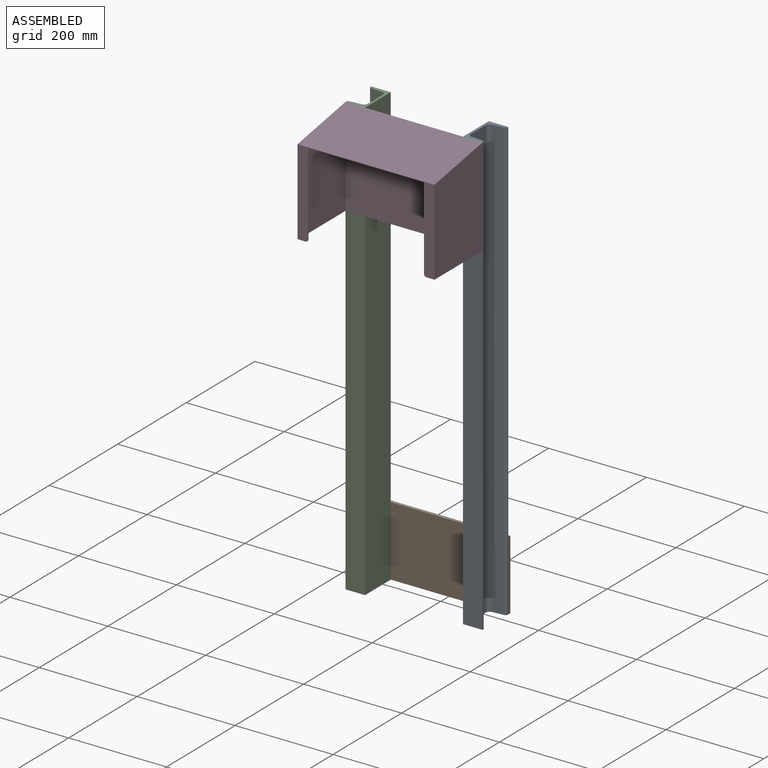
[diagram: assembled view]
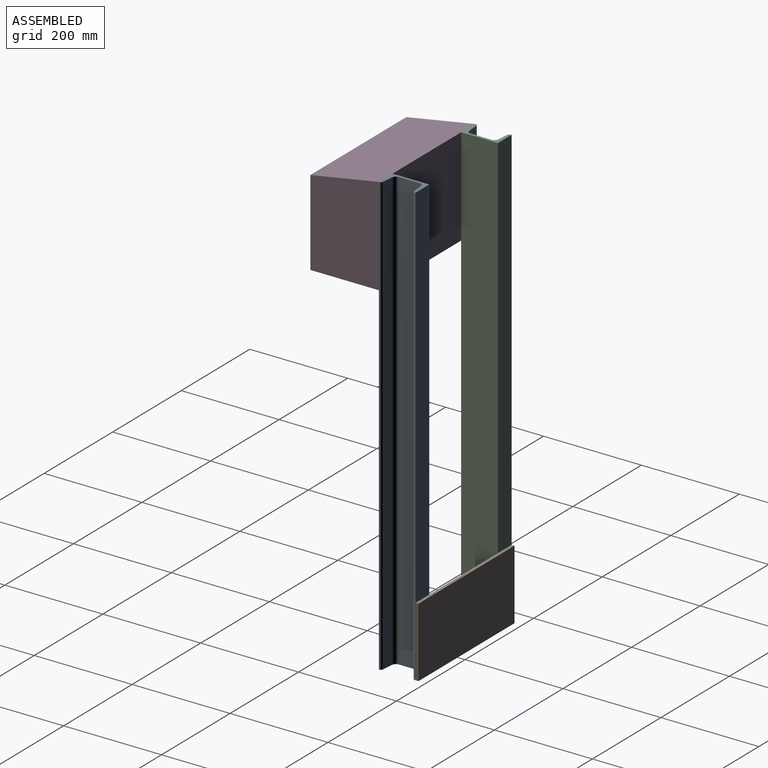
[diagram: assembled view, second angle]
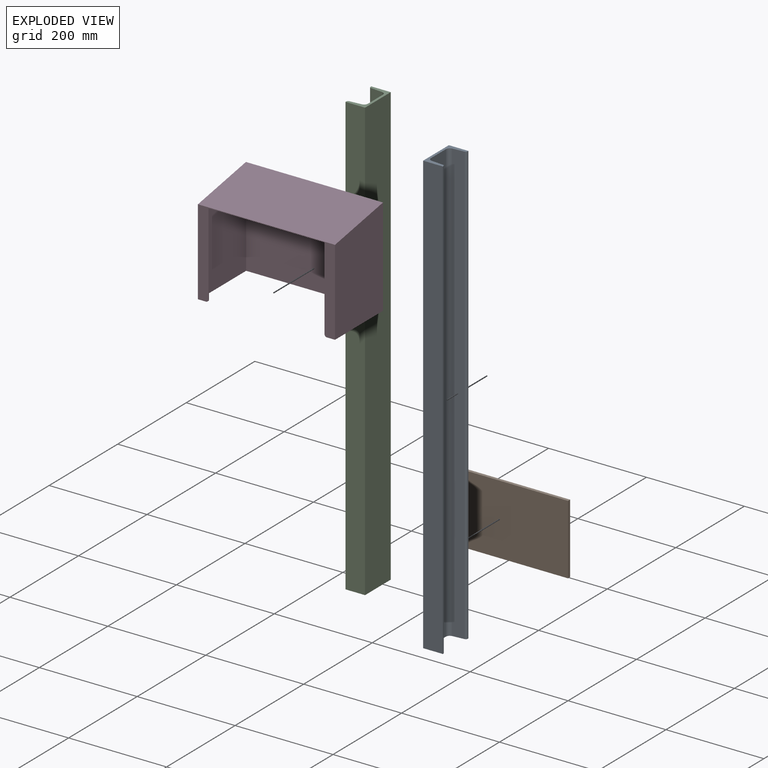
[diagram: exploded view]
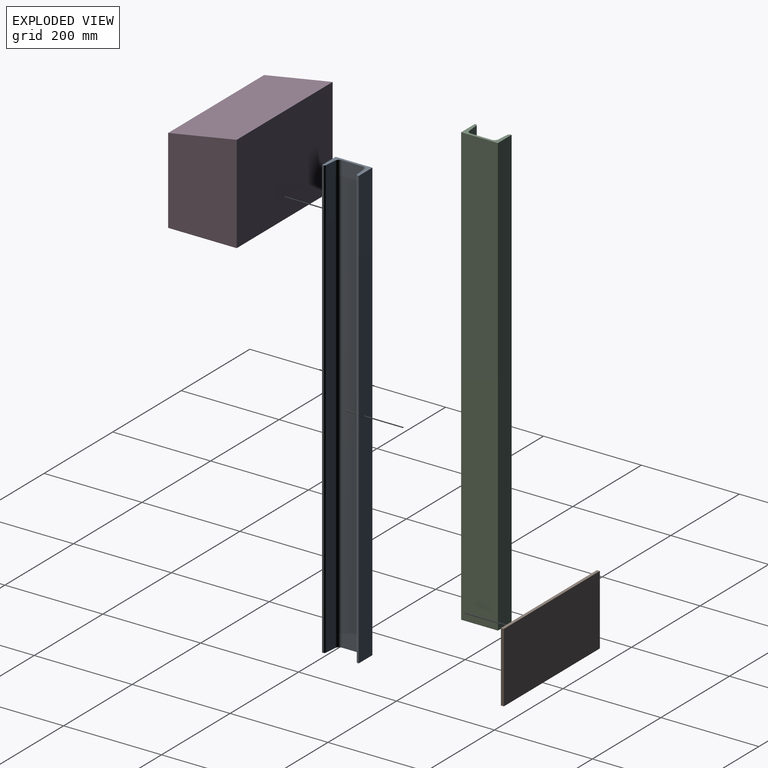
[diagram: exploded view, second angle]
ASSEMBLY  parts=4 mates=8
PART A: 14 faces, bbox 900x75x40 mm
  f0: plane 900x1.8mm, normal (0,0,-1), area 1623.3mm2, adj f1,f4,f6,f13
  f1: plane 75x40mm, normal (-1,0,0), area 881.8mm2, adj f0,f2,f3,f4,f5,f7,f8,f9
  f2: plane 900x40mm, normal (0,1,0), area 36000mm2, adj f1,f3,f5,f6
  f3: plane 900x75mm, normal (0,0,1), area 67500mm2, adj f1,f2,f4,f6
  f4: plane 900x40mm, normal (0,-1,0), area 36000mm2, adj f0,f1,f3,f6
  f5: plane 900x1.8mm, normal (0,0,-1), area 1623.3mm2, adj f1,f2,f6,f12
  f6: plane 75x40mm, normal (1,0,0), area 881.8mm2, adj f0,f2,f3,f4,f5,f7,f8,f9
  f7: plane 900x24.05mm, normal (0,-1,-0.09), area 21723.9mm2, adj f1,f6,f10,f12
  f8: plane 900x43.28mm, normal (0,0,-1), area 38948.9mm2, adj f1,f6,f10,f11
  f9: plane 900x24.05mm, normal (0,1,-0.09), area 21723.9mm2, adj f1,f6,f11,f13
  f10: cylinder r=8mm len=900mm, axis (1,0,0), area 10681.4mm2, adj f1,f6,f7,f8
  f11: cylinder r=8mm len=900mm, axis (-1,0,0), area 10681.4mm2, adj f1,f6,f8,f9
  f12: cylinder r=4mm len=900mm, axis (-1,0,0), area 5340.7mm2, adj f1,f5,f6,f7
  f13: cylinder r=4mm len=900mm, axis (1,0,0), area 5340.7mm2, adj f0,f1,f6,f9
PART B: 6 faces, bbox 280x143x6 mm
  f0: plane 280x6mm, normal (0,1,0), area 1680mm2, adj f1,f3,f4,f5
  f1: plane 143x6mm, normal (-1,0,0), area 858mm2, adj f0,f2,f4,f5
  f2: plane 280x6mm, normal (0,-1,0), area 1680mm2, adj f1,f3,f4,f5
  f3: plane 143x6mm, normal (1,0,0), area 858mm2, adj f0,f2,f4,f5
  f4: plane 280x143mm, normal (0,0,1), area 40040mm2, adj f0,f1,f2,f3
  f5: plane 280x143mm, normal (0,0,-1), area 40040mm2, adj f0,f1,f2,f3
PART C: same geometry as A
PART D: 16 faces, bbox 280x200x140 mm
  f0: plane 174.06x20mm, normal (0,0,-1), area 3475.7mm2, adj f2,f9,f11,f13,f14
  f1: plane 280x175.31mm, normal (0,0,1), area 7888.8mm2, adj f2,f3,f4,f6,f11,f12,f13,f14
  f2: plane 280x140mm, normal (0,-1,0), area 880.5mm2, adj f0,f1,f3,f4,f5,f7,f8,f9
  f3: plane 200x140mm, normal (-1,0,0), area 26272mm2, adj f1,f2,f5,f6
  f4: plane 200x140mm, normal (1,0,0), area 26272mm2, adj f1,f2,f5,f6
  f5: plane 280x200mm, normal (0,0,-1), area 56000mm2, adj f2,f3,f4,f6
  f6: plane 280x140mm, normal (0,0.98,0.17), area 39804.7mm2, adj f1,f3,f4,f5
  f7: plane 198.21x137mm, normal (1,0,0), area 25500.4mm2, adj f2,f8,f10,f11
  f8: plane 174.06x20mm, normal (0,0,-1), area 3475.7mm2, adj f2,f7,f11,f12,f15
  f9: plane 198.21x137mm, normal (-1,0,0), area 25500.4mm2, adj f0,f2,f10,f11
  f10: plane 277x198.21mm, normal (0,0,1), area 54904.8mm2, adj f2,f7,f9,f11
  f11: plane 277x138.5mm, normal (0,-0.98,-0.17), area 38895.4mm2, adj f0,f1,f7,f8,f9,f10,f12,f13
  f12: plane 169.06x1.5mm, normal (1,0,0), area 253.4mm2, adj f1,f8,f11,f15
  f13: plane 169.06x1.5mm, normal (-1,0,0), area 253.4mm2, adj f0,f1,f11,f14
  f14: cylinder r=5mm len=5mm, axis (0,0,-1), area 11.8mm2, adj f0,f1,f2,f13
  f15: cylinder r=5mm len=5mm, axis (0,0,1), area 11.8mm2, adj f1,f2,f8,f12
PLACE A rot(axis=(0,-1,0),90deg) t=(120,-40.5,378.5)mm
PLACE B rot(axis=(1,0,0),90deg) t=(0,3,0)mm fixed
PLACE C rot(axis=(0,1,0),90deg) t=(-120,-40.5,378.5)mm
PLACE D rot(axis=(1,0,0),90deg) t=(0,-148,728.5)mm
MATE planar C.f4 <-> D.f5  axis (0,-1,0) through (-120,-78,828.5)mm
MATE planar C.f2 <-> B.f4  axis (0,1,0) through (-120,-3,378.5)mm
MATE planar C.f5 <-> B.f1  axis (-1,0,0) through (-140,-3.9,-71.5)mm
MATE planar D.f3 <-> C.f0  axis (-1,0,0) through (-140,-146.47,722.46)mm
MATE planar C.f6 <-> B.f2  axis (0,0,-1) through (-120,-3,-71.5)mm
MATE planar A.f2 <-> B.f4  axis (0,1,0) through (120,-3,378.5)mm
MATE planar B.f3 <-> A.f5  axis (1,0,0) through (140,-3,-71.5)mm
MATE planar A.f1 <-> B.f2  axis (0,0,-1) through (120,-3,-71.5)mm
